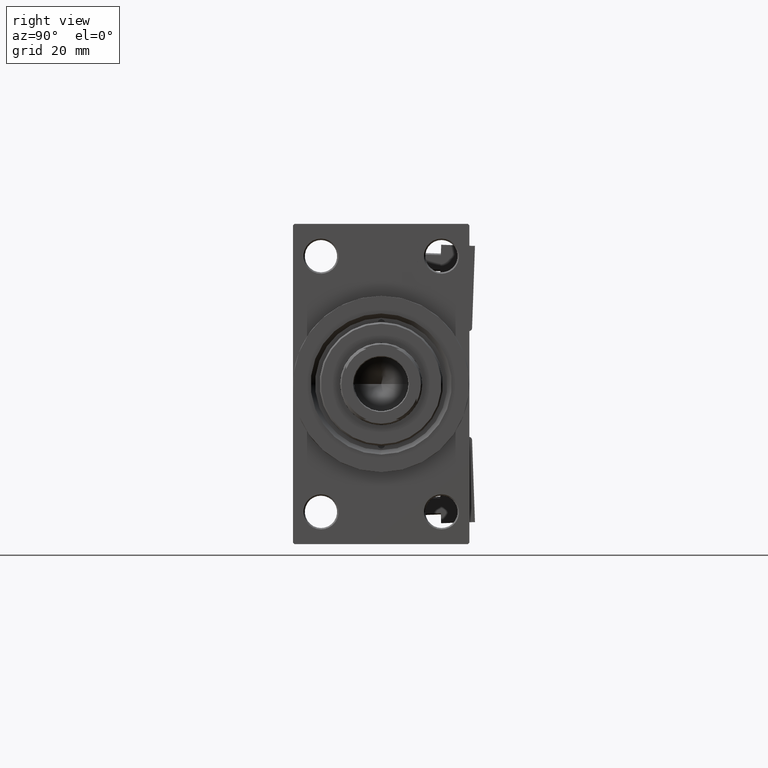
[diagram: clean part render]
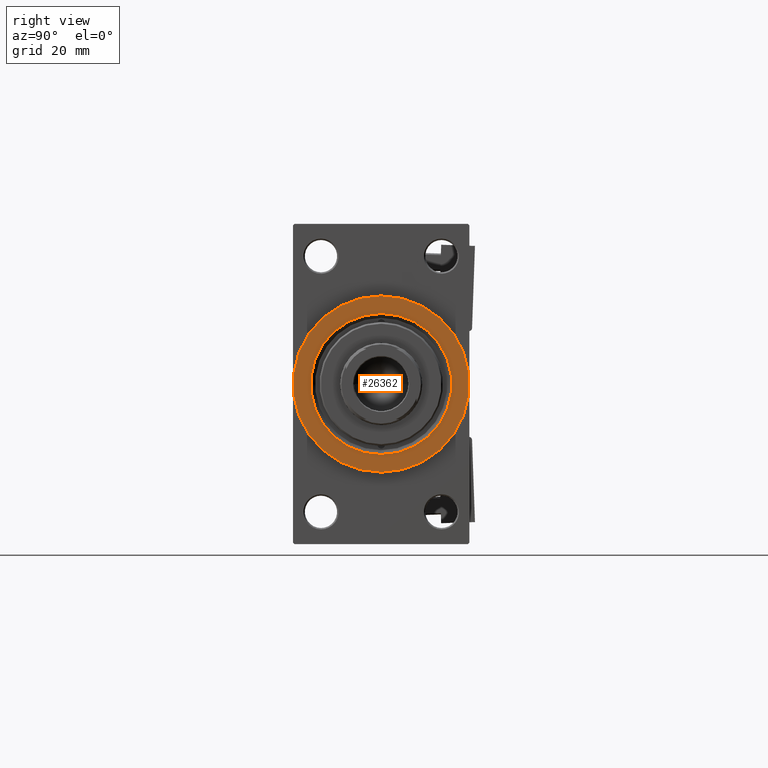
[diagram: same view with one face highlighted and labeled with its STEP entity id]
A machine part, right view. The second image highlights one B-rep face of the part: STEP entity #26362.
In plain terms, the highlighted planar face has unit normal (1, 0, 0).
Its self-contained STEP definition (entity closure, byte-faithful):
#1734 = DIRECTION ( 'NONE',  ( 1.000000000000000000, 0.000000000000000000, 0.000000000000000000 ) ) ;
#5271 = DIRECTION ( 'NONE',  ( 0.000000000000000000, 0.000000000000000000, -1.000000000000000000 ) ) ;
#6396 = DIRECTION ( 'NONE',  ( 0.000000000000000000, 0.000000000000000000, -1.000000000000000000 ) ) ;
#7774 = CARTESIAN_POINT ( 'NONE',  ( 178.0000000000000000, 0.000000000000000000, 0.000000000000000000 ) ) ;
#8493 = ORIENTED_EDGE ( 'NONE', *, *, #39792, .T. ) ;
#8534 = CARTESIAN_POINT ( 'NONE',  ( 178.0000000000000000, 0.000000000000000000, 0.000000000000000000 ) ) ;
#9731 = CARTESIAN_POINT ( 'NONE',  ( 178.0000000000000000, 0.000000000000000000, -24.00000000000005329 ) ) ;
#12037 = DIRECTION ( 'NONE',  ( -1.000000000000000000, -0.000000000000000000, -0.000000000000000000 ) ) ;
#13393 = EDGE_LOOP ( 'NONE', ( #43001, #25994 ) ) ;
#13567 = VERTEX_POINT ( 'NONE', #9731 ) ;
#16019 = CARTESIAN_POINT ( 'NONE',  ( 178.0000000000000000, 0.000000000000000000, 0.000000000000000000 ) ) ;
#16632 = AXIS2_PLACEMENT_3D ( 'NONE', #8534, #1734, #5271 ) ;
#18243 = CIRCLE ( 'NONE', #16632, 30.00000000000000000 ) ;
#18561 = DIRECTION ( 'NONE',  ( 0.000000000000000000, 0.000000000000000000, -1.000000000000000000 ) ) ;
#19438 = CARTESIAN_POINT ( 'NONE',  ( 178.0000000000000000, 2.939152317953654205E-15, 24.00000000000005329 ) ) ;
#20512 = AXIS2_PLACEMENT_3D ( 'NONE', #16019, #23312, #39147 ) ;
#21298 = CIRCLE ( 'NONE', #29286, 30.00000000000000000 ) ;
#21607 = AXIS2_PLACEMENT_3D ( 'NONE', #25600, #45451, #18561 ) ;
#21684 = CIRCLE ( 'NONE', #44129, 24.00000000000005329 ) ;
#21928 = VERTEX_POINT ( 'NONE', #31237 ) ;
#23312 = DIRECTION ( 'NONE',  ( -1.000000000000000000, -0.000000000000000000, -0.000000000000000000 ) ) ;
#23741 = EDGE_LOOP ( 'NONE', ( #8493, #32499 ) ) ;
#25003 = CARTESIAN_POINT ( 'NONE',  ( 178.0000000000000000, 0.000000000000000000, 0.000000000000000000 ) ) ;
#25600 = CARTESIAN_POINT ( 'NONE',  ( 178.0000000000000000, 0.000000000000000000, 0.000000000000000000 ) ) ;
#25994 = ORIENTED_EDGE ( 'NONE', *, *, #40754, .T. ) ;
#26362 = ADVANCED_FACE ( 'NONE', ( #41189, #36913 ), #30108, .T. ) ;
#26875 = DIRECTION ( 'NONE',  ( 0.000000000000000000, 0.000000000000000000, -1.000000000000000000 ) ) ;
#27998 = VERTEX_POINT ( 'NONE', #19438 ) ;
#28910 = EDGE_CURVE ( 'NONE', #13567, #27998, #21684, .T. ) ;
#29286 = AXIS2_PLACEMENT_3D ( 'NONE', #25003, #33289, #6396 ) ;
#30108 = PLANE ( 'NONE',  #21607 ) ;
#31237 = CARTESIAN_POINT ( 'NONE',  ( 178.0000000000000000, 3.673940397442059178E-15, -30.00000000000000000 ) ) ;
#32499 = ORIENTED_EDGE ( 'NONE', *, *, #47794, .T. ) ;
#33289 = DIRECTION ( 'NONE',  ( 1.000000000000000000, 0.000000000000000000, 0.000000000000000000 ) ) ;
#33416 = VERTEX_POINT ( 'NONE', #41206 ) ;
#36913 = FACE_OUTER_BOUND ( 'NONE', #23741, .T. ) ;
#39147 = DIRECTION ( 'NONE',  ( 0.000000000000000000, 0.000000000000000000, -1.000000000000000000 ) ) ;
#39792 = EDGE_CURVE ( 'NONE', #33416, #21928, #21298, .T. ) ;
#40754 = EDGE_CURVE ( 'NONE', #27998, #13567, #49444, .T. ) ;
#41189 = FACE_BOUND ( 'NONE', #13393, .T. ) ;
#41206 = CARTESIAN_POINT ( 'NONE',  ( 178.0000000000000000, 0.000000000000000000, 30.00000000000000000 ) ) ;
#43001 = ORIENTED_EDGE ( 'NONE', *, *, #28910, .T. ) ;
#44129 = AXIS2_PLACEMENT_3D ( 'NONE', #7774, #12037, #26875 ) ;
#45451 = DIRECTION ( 'NONE',  ( 1.000000000000000000, 0.000000000000000000, 0.000000000000000000 ) ) ;
#47794 = EDGE_CURVE ( 'NONE', #21928, #33416, #18243, .T. ) ;
#49444 = CIRCLE ( 'NONE', #20512, 24.00000000000005329 ) ;